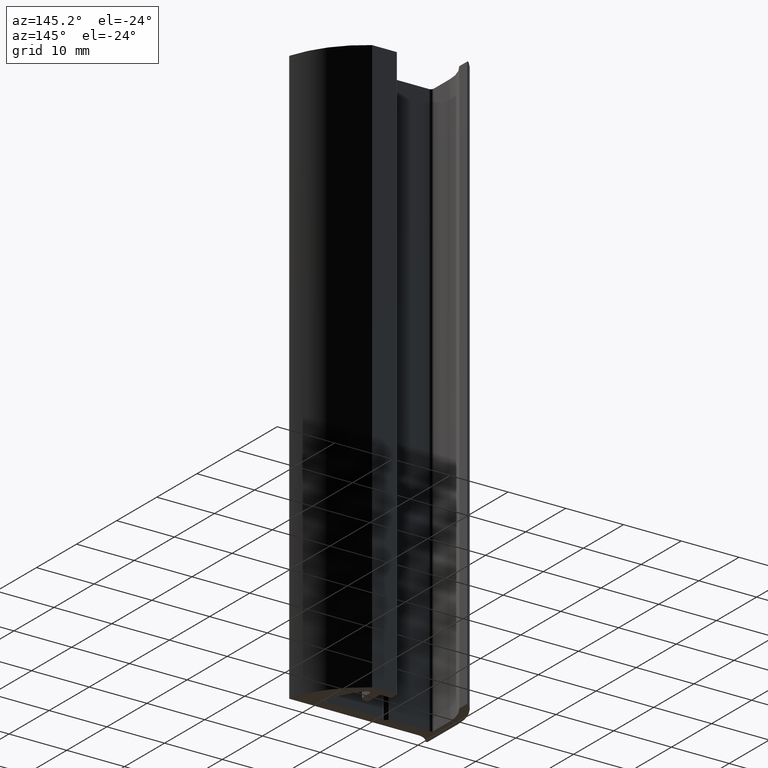
[diagram: clean part render]
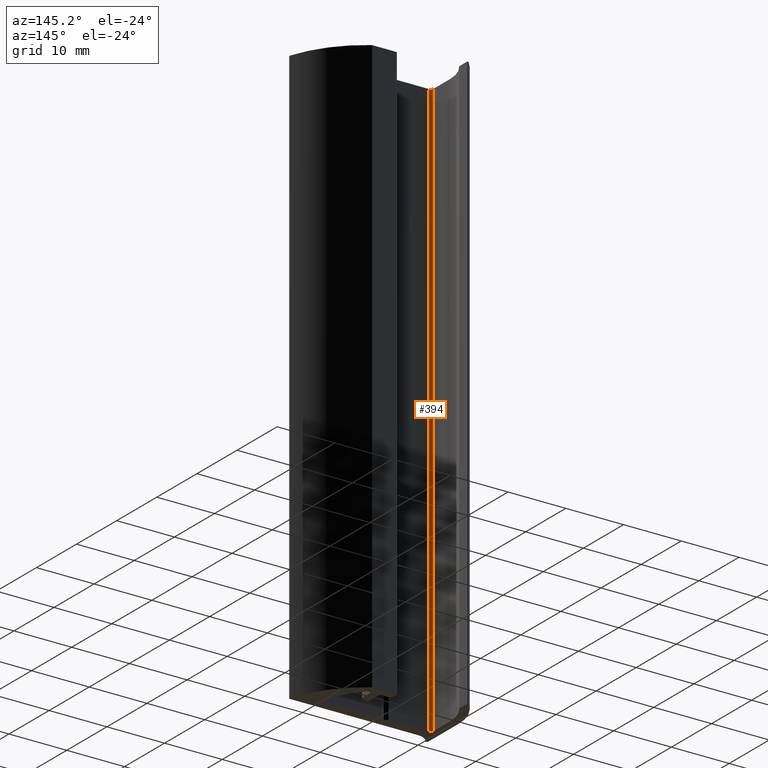
[diagram: same view with one face highlighted and labeled with its STEP entity id]
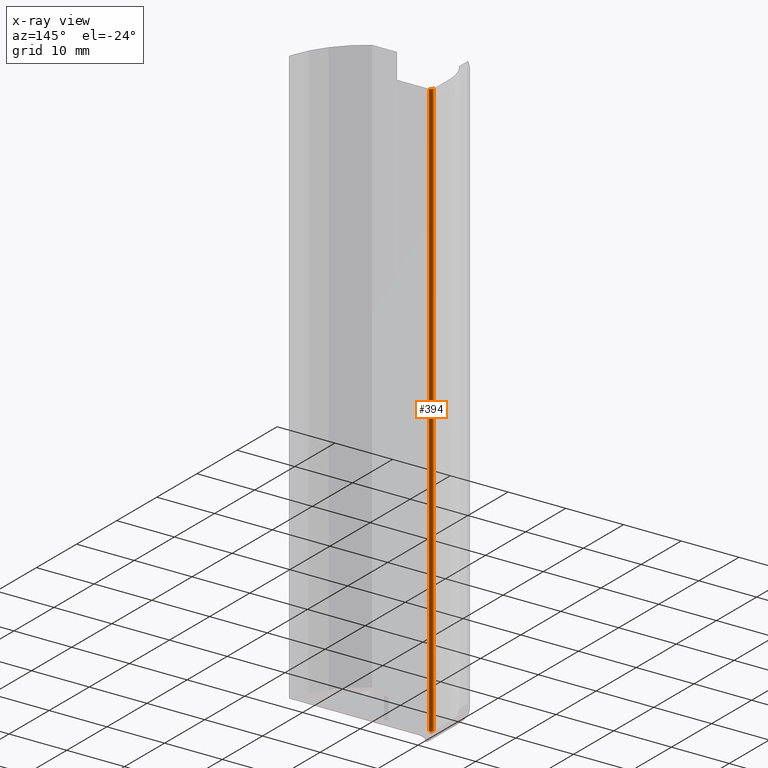
[diagram: x-ray of the same camera — body ghosted, the highlighted face saturated]
A machine part, auxiliary view. The second image highlights one B-rep face of the part: STEP entity #394.
The next image is the same camera in x-ray: the body ghosted, the highlighted face saturated — about 0% of this face is hidden behind the body in this view.
In plain terms, the highlighted cylindrical surface (edge-blend (fillet) strip) has radius 0.5 mm, axis along (0, 0, -1).
Its self-contained STEP definition (entity closure, byte-faithful):
#336=CARTESIAN_POINT('',(-0.499999999979309,2.000000000021259,0.0));
#337=VERTEX_POINT('',#336);
#344=CARTESIAN_POINT('',(-0.499999999979309,2.000000000021259,100.0));
#345=VERTEX_POINT('',#344);
#346=CARTESIAN_POINT('',(-0.499999999979309,2.000000000021259,0.0));
#347=DIRECTION('',(0.0,0.0,1.0));
#348=VECTOR('',#347,100.0);
#349=LINE('',#346,#348);
#350=EDGE_CURVE('',#337,#345,#349,.T.);
#362=CARTESIAN_POINT('',(-0.499999999979309,2.500000000021259,0.0));
#363=DIRECTION('',(0.0,0.0,-1.0));
#364=DIRECTION('',(-6.123234E-017,-1.0,0.0));
#365=AXIS2_PLACEMENT_3D('',#362,#363,#364);
#366=CYLINDRICAL_SURFACE('',#365,0.500000000000000);
#367=CARTESIAN_POINT('',(-0.999999999979309,2.500000000021259,0.0));
#368=VERTEX_POINT('',#367);
#369=CARTESIAN_POINT('',(-0.499999999979309,2.500000000021259,0.0));
#370=DIRECTION('',(0.0,0.0,-1.0));
#371=DIRECTION('',(-1.0,0.0,0.0));
#372=AXIS2_PLACEMENT_3D('',#369,#370,#371);
#373=CIRCLE('',#372,0.500000000000000);
#374=EDGE_CURVE('',#337,#368,#373,.T.);
#375=ORIENTED_EDGE('',*,*,#374,.T.);
#376=CARTESIAN_POINT('',(-0.999999999979309,2.500000000021259,100.0));
#377=VERTEX_POINT('',#376);
#378=CARTESIAN_POINT('',(-0.999999999979309,2.500000000021259,0.0));
#379=DIRECTION('',(0.0,0.0,1.0));
#380=VECTOR('',#379,100.0);
#381=LINE('',#378,#380);
#382=EDGE_CURVE('',#368,#377,#381,.T.);
#383=ORIENTED_EDGE('',*,*,#382,.T.);
#384=CARTESIAN_POINT('',(-0.499999999979309,2.500000000021259,100.0));
#385=DIRECTION('',(0.0,0.0,-1.0));
#386=DIRECTION('',(-1.0,0.0,0.0));
#387=AXIS2_PLACEMENT_3D('',#384,#385,#386);
#388=CIRCLE('',#387,0.500000000000000);
#389=EDGE_CURVE('',#345,#377,#388,.T.);
#390=ORIENTED_EDGE('',*,*,#389,.F.);
#391=ORIENTED_EDGE('',*,*,#350,.F.);
#392=EDGE_LOOP('',(#375,#383,#390,#391));
#393=FACE_OUTER_BOUND('',#392,.T.);
#394=ADVANCED_FACE('',(#393),#366,.F.);